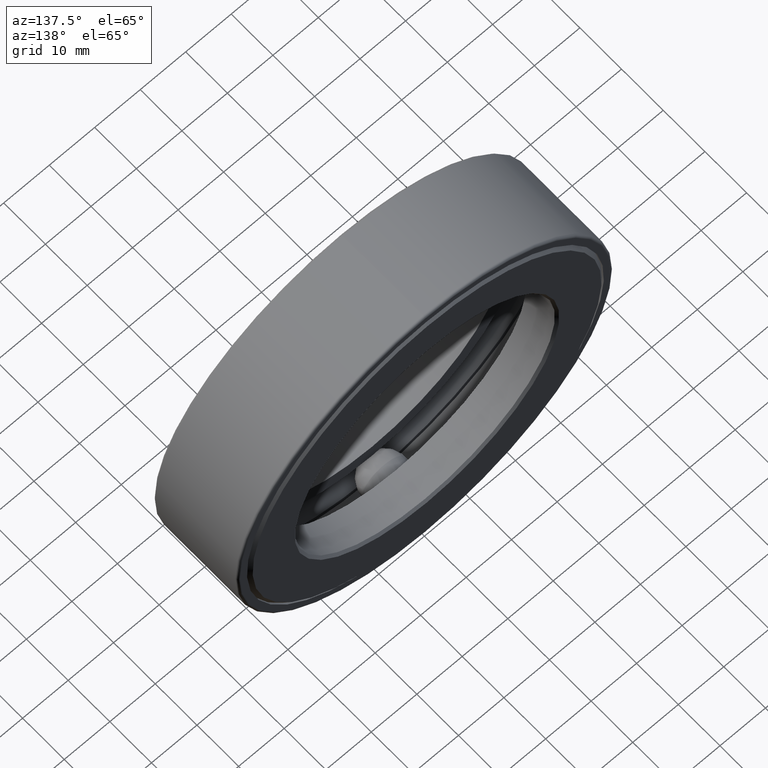
[diagram: clean part render]
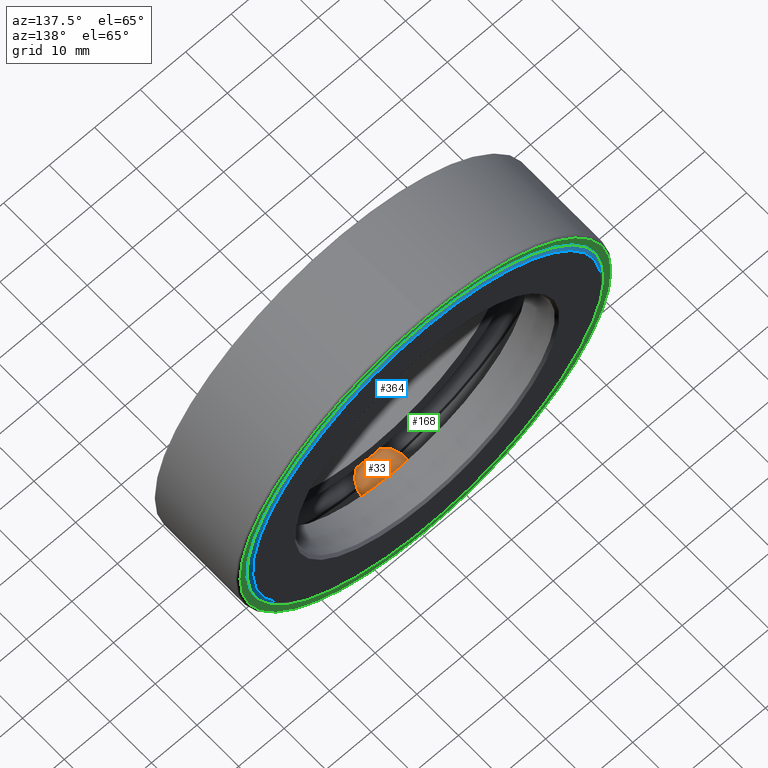
[diagram: same view with three faces highlighted in distinct colors, each labeled with its STEP entity id]
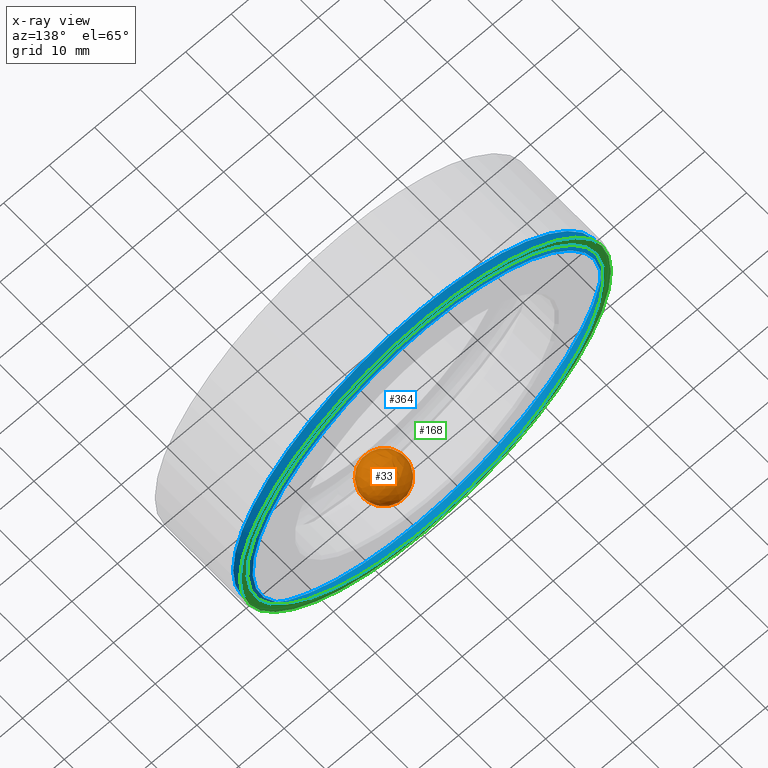
[diagram: x-ray of the same camera — body ghosted, the three highlighted faces saturated]
A machine part, auxiliary view with three faces highlighted in distinct colors.
The next image is the same camera in x-ray (body ghosted, the three faces saturated) — at least one of them is partly hidden behind the body in this view.
Their STEP definitions:

[orange] entity #33 — the highlighted spherical surface has radius 4.7625 mm.
#33 = ADVANCED_FACE ( 'NONE', ( ), #153, .T. ) ;
#153 = SPHERICAL_SURFACE ( 'NONE', #212, 0.1874999999999999700 ) ;
#212 = AXIS2_PLACEMENT_3D ( 'NONE', #504, #376, #326 ) ;
#326 = DIRECTION ( 'NONE',  ( 1.047444401652939500E-014, 0.0000000000000000000, 1.000000000000000000 ) ) ;
#376 = DIRECTION ( 'NONE',  ( 1.000000000000000000, 0.0000000000000000000, -1.047444401652939500E-014 ) ) ;
#504 = CARTESIAN_POINT ( 'NONE',  ( -1.475325439728165900E-014, 0.4062499999999999400, -1.408499999999999600 ) ) ;

[blue] entity #364 — the highlighted conical surface has half-angle 45 deg.
#40 = DIRECTION ( 'NONE',  ( 0.0000000000000000000, 0.0000000000000000000, 1.000000000000000000 ) ) ;
#56 = EDGE_LOOP ( 'NONE', ( #296 ) ) ;
#101 = FACE_OUTER_BOUND ( 'NONE', #56, .T. ) ;
#132 = CARTESIAN_POINT ( 'NONE',  ( 0.0000000000000000000, 0.7245000000000001400, 1.597999999999999600 ) ) ;
#138 = CIRCLE ( 'NONE', #340, 1.597999999999999600 ) ;
#142 = EDGE_CURVE ( 'NONE', #351, #351, #138, .T. ) ;
#159 = AXIS2_PLACEMENT_3D ( 'NONE', #164, #573, #446 ) ;
#164 = CARTESIAN_POINT ( 'NONE',  ( 0.0000000000000000000, 0.8124999999999998900, 0.0000000000000000000 ) ) ;
#196 = CONICAL_SURFACE ( 'NONE', #159, 1.509999999999999800, 0.7853981633974498300 ) ;
#227 = EDGE_CURVE ( 'NONE', #390, #390, #347, .T. ) ;
#276 = CARTESIAN_POINT ( 'NONE',  ( 0.0000000000000000000, 0.7245000000000001400, 0.0000000000000000000 ) ) ;
#282 = FACE_BOUND ( 'NONE', #499, .T. ) ;
#296 = ORIENTED_EDGE ( 'NONE', *, *, #142, .T. ) ;
#302 = ORIENTED_EDGE ( 'NONE', *, *, #227, .F. ) ;
#328 = AXIS2_PLACEMENT_3D ( 'NONE', #466, #338, #602 ) ;
#338 = DIRECTION ( 'NONE',  ( -0.0000000000000000000, 1.000000000000000000, -0.0000000000000000000 ) ) ;
#340 = AXIS2_PLACEMENT_3D ( 'NONE', #276, #593, #40 ) ;
#347 = CIRCLE ( 'NONE', #328, 1.509999999999999800 ) ;
#351 = VERTEX_POINT ( 'NONE', #132 ) ;
#364 = ADVANCED_FACE ( 'NONE', ( #101, #282 ), #196, .T. ) ;
#390 = VERTEX_POINT ( 'NONE', #462 ) ;
#446 = DIRECTION ( 'NONE',  ( 0.0000000000000000000, 0.0000000000000000000, -1.000000000000000000 ) ) ;
#462 = CARTESIAN_POINT ( 'NONE',  ( 0.0000000000000000000, 0.8124999999999998900, 1.509999999999999800 ) ) ;
#466 = CARTESIAN_POINT ( 'NONE',  ( 0.0000000000000000000, 0.8124999999999998900, 0.0000000000000000000 ) ) ;
#499 = EDGE_LOOP ( 'NONE', ( #302 ) ) ;
#573 = DIRECTION ( 'NONE',  ( 0.0000000000000000000, -1.000000000000000000, 0.0000000000000000000 ) ) ;
#593 = DIRECTION ( 'NONE',  ( -0.0000000000000000000, 1.000000000000000000, -0.0000000000000000000 ) ) ;
#602 = DIRECTION ( 'NONE',  ( 0.0000000000000000000, 0.0000000000000000000, 1.000000000000000000 ) ) ;

[green] entity #168 — the highlighted planar face has unit normal (0, -1, 0).
#6 = CARTESIAN_POINT ( 'NONE',  ( 0.0000000000000000000, 0.7974999999999998800, 0.0000000000000000000 ) ) ;
#15 = AXIS2_PLACEMENT_3D ( 'NONE', #279, #506, #127 ) ;
#28 = AXIS2_PLACEMENT_3D ( 'NONE', #151, #99, #430 ) ;
#51 = PLANE ( 'NONE',  #581 ) ;
#99 = DIRECTION ( 'NONE',  ( -0.0000000000000000000, 1.000000000000000000, -0.0000000000000000000 ) ) ;
#100 = VERTEX_POINT ( 'NONE', #270 ) ;
#114 = EDGE_CURVE ( 'NONE', #346, #346, #410, .T. ) ;
#127 = DIRECTION ( 'NONE',  ( 0.0000000000000000000, 0.0000000000000000000, 1.000000000000000000 ) ) ;
#151 = CARTESIAN_POINT ( 'NONE',  ( 0.0000000000000000000, 0.7974999999999998800, 0.0000000000000000000 ) ) ;
#157 = CIRCLE ( 'NONE', #28, 1.545000000000000200 ) ;
#165 = EDGE_LOOP ( 'NONE', ( #362 ) ) ;
#168 = ADVANCED_FACE ( 'NONE', ( #442, #561 ), #51, .F. ) ;
#270 = CARTESIAN_POINT ( 'NONE',  ( 0.0000000000000000000, 0.7974999999999998800, 1.545000000000000200 ) ) ;
#275 = EDGE_CURVE ( 'NONE', #100, #100, #157, .T. ) ;
#279 = CARTESIAN_POINT ( 'NONE',  ( 0.0000000000000000000, 0.7974999999999998800, 0.0000000000000000000 ) ) ;
#346 = VERTEX_POINT ( 'NONE', #508 ) ;
#362 = ORIENTED_EDGE ( 'NONE', *, *, #114, .T. ) ;
#410 = CIRCLE ( 'NONE', #15, 1.605000000000000000 ) ;
#421 = DIRECTION ( 'NONE',  ( 0.0000000000000000000, -0.0000000000000000000, -1.000000000000000000 ) ) ;
#430 = DIRECTION ( 'NONE',  ( 0.0000000000000000000, 0.0000000000000000000, 1.000000000000000000 ) ) ;
#442 = FACE_BOUND ( 'NONE', #482, .T. ) ;
#465 = DIRECTION ( 'NONE',  ( 0.0000000000000000000, -1.000000000000000000, 0.0000000000000000000 ) ) ;
#482 = EDGE_LOOP ( 'NONE', ( #567 ) ) ;
#506 = DIRECTION ( 'NONE',  ( -0.0000000000000000000, 1.000000000000000000, -0.0000000000000000000 ) ) ;
#508 = CARTESIAN_POINT ( 'NONE',  ( 0.0000000000000000000, 0.7974999999999998800, 1.605000000000000000 ) ) ;
#561 = FACE_OUTER_BOUND ( 'NONE', #165, .T. ) ;
#567 = ORIENTED_EDGE ( 'NONE', *, *, #275, .F. ) ;
#581 = AXIS2_PLACEMENT_3D ( 'NONE', #6, #465, #421 ) ;